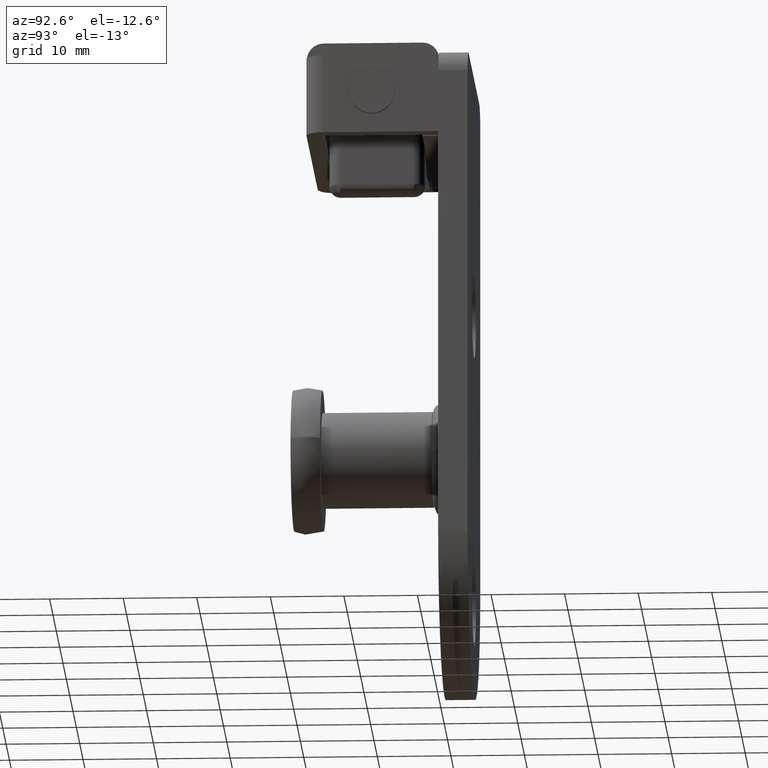
[diagram: clean part render]
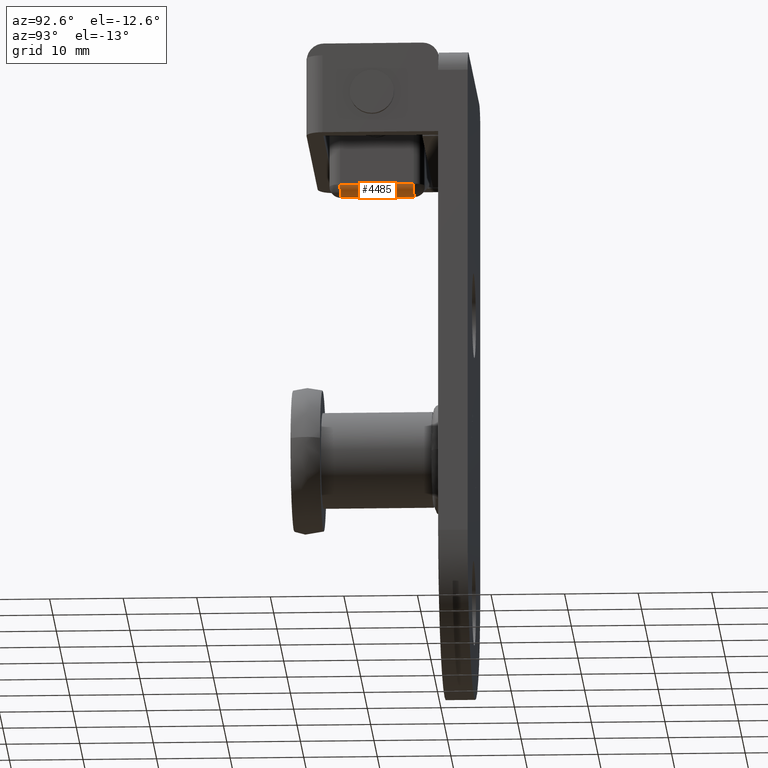
[diagram: same view with one face highlighted and labeled with its STEP entity id]
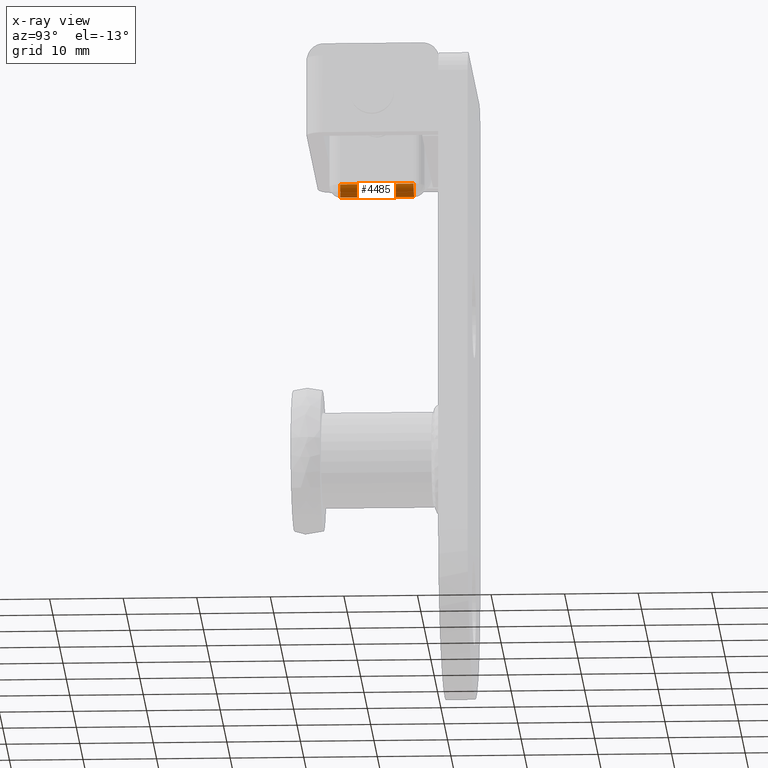
[diagram: x-ray of the same camera — body ghosted, the highlighted face saturated]
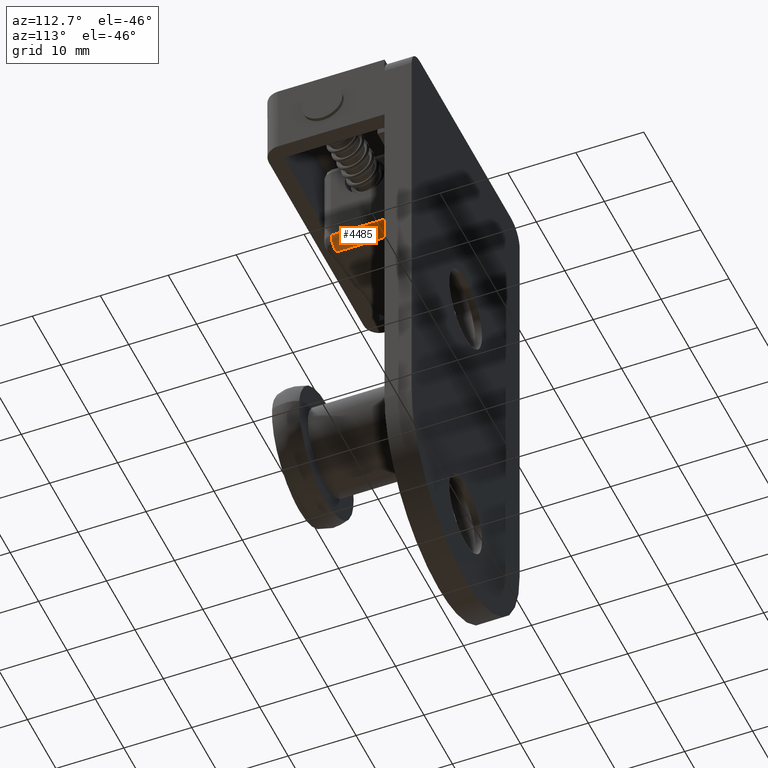
[diagram: same view with one face highlighted and labeled with its STEP entity id]
A machine part, auxiliary view. The second image highlights one B-rep face of the part: STEP entity #4485.
The next image is the same camera in x-ray: the body ghosted, the highlighted face saturated — about 0% of this face is hidden behind the body in this view.
A second angle (auxiliary view) of the same face is appended — the face is thin or edge-on in the first view.
In plain terms, the highlighted face is a freeform B-spline surface patch.
Its self-contained STEP definition (entity closure, byte-faithful):
#3674=CARTESIAN_POINT('',(-2.409798649836235,-16.500000000000000,36.051641824928147));
#3675=VERTEX_POINT('',#3674);
#3770=CARTESIAN_POINT('',(-4.299999999999900,-16.500000000000000,37.500000518874650));
#3771=VERTEX_POINT('',#3770);
#3772=CARTESIAN_POINT('',(-4.299999999999900,-16.500000000000000,37.500000518874650));
#3773=CARTESIAN_POINT('',(-4.300261543706422,-16.500000000000000,37.285030116468391));
#3774=CARTESIAN_POINT('',(-4.227960640992539,-16.500000000000000,36.955753064836713));
#3775=CARTESIAN_POINT('',(-3.996243832062951,-16.499999999999989,36.573332607372301));
#3776=CARTESIAN_POINT('',(-3.754398793512686,-16.500000000000110,36.325736378822803));
#3777=CARTESIAN_POINT('',(-3.462585185310895,-16.499999999999751,36.139574955418517));
#3778=CARTESIAN_POINT('',(-3.136112453459834,-16.500000000000199,36.024594063179983));
#3779=CARTESIAN_POINT('',(-2.777700939519795,-16.500000000000060,35.985263489714619));
#3780=CARTESIAN_POINT('',(-2.534301609014097,-16.499999999999929,36.018057030332088));
#3781=CARTESIAN_POINT('',(-2.409798649836235,-16.500000000000000,36.051641824928147));
#3782=B_SPLINE_CURVE_WITH_KNOTS('',3,(#3772,#3773,#3774,#3775,#3776,#3777,#3778,#3779,#3780,#3781),.UNSPECIFIED.,.F.,.U.,(4,1,1,1,1,1,1,4),(0.000000167465918,0.644773194969436,0.988654332886920,1.332544102194858,1.676391282591502,2.020286897292444,2.364170289803898,2.751030412050184),.UNSPECIFIED.);
#3783=EDGE_CURVE('',#3771,#3675,#3782,.T.);
#4059=CARTESIAN_POINT('',(-4.299999999999900,-6.499999999999840,37.500000518874650));
#4060=VERTEX_POINT('',#4059);
#4157=CARTESIAN_POINT('',(-2.409798649836235,-6.499999999999840,36.051641824928147));
#4158=VERTEX_POINT('',#4157);
#4159=CARTESIAN_POINT('',(-2.409798649836235,-6.499999999999840,36.051641824928147));
#4160=CARTESIAN_POINT('',(-2.589633837477416,-6.499999999999841,36.003028293923400));
#4161=CARTESIAN_POINT('',(-2.865764914988416,-6.499999999999847,35.982000924643494));
#4162=CARTESIAN_POINT('',(-3.246674624677963,-6.499999999999838,36.057437991355293));
#4163=CARTESIAN_POINT('',(-3.592726739031417,-6.499999999999854,36.201921775756723));
#4164=CARTESIAN_POINT('',(-3.886052706257063,-6.499999999999829,36.440373798816417));
#4165=CARTESIAN_POINT('',(-4.106404803045050,-6.499999999999834,36.742467289233787));
#4166=CARTESIAN_POINT('',(-4.256690738765801,-6.499999999999856,37.070207438460450));
#4167=CARTESIAN_POINT('',(-4.300083525911554,-6.499999999999819,37.342390871026019));
#4168=CARTESIAN_POINT('',(-4.299999999999900,-6.499999999999840,37.500000518874650));
#4169=B_SPLINE_CURVE_WITH_KNOTS('',3,(#4159,#4160,#4161,#4162,#4163,#4164,#4165,#4166,#4167,#4168),.UNSPECIFIED.,.F.,.U.,(4,1,1,1,1,1,1,4),(0.000000167466673,0.558796812418966,0.816721670916760,1.160622582489725,1.676391282592326,1.934309596225681,2.278210327446601,2.751030412050175),.UNSPECIFIED.);
#4170=EDGE_CURVE('',#4158,#4060,#4169,.T.);
#4457=CARTESIAN_POINT('',(-4.299485987463235,-16.750000000000000,37.539265941336460));
#4458=CARTESIAN_POINT('',(-4.299485987463235,-6.243749999999835,37.539265941336460));
#4459=CARTESIAN_POINT('',(-4.355562822285959,-16.750000000000004,35.397778017202960));
#4460=CARTESIAN_POINT('',(-4.355562822285959,-6.243749999999836,35.397778017202960));
#4461=CARTESIAN_POINT('',(-2.324043015392270,-16.750000000000000,36.077515036065350));
#4462=CARTESIAN_POINT('',(-2.324043015392270,-6.243749999999835,36.077515036065350));
#4470=(BOUNDED_SURFACE()B_SPLINE_SURFACE(1,2,((#4457,#4459,#4461),(#4458,#4460,#4462)),.UNSPECIFIED.,.F.,.F.,.U.)B_SPLINE_SURFACE_WITH_KNOTS((2,2),(3,3),(0.0,10.506250000000170),(0.0,3.123402303310464),.UNSPECIFIED.)GEOMETRIC_REPRESENTATION_ITEM()RATIONAL_B_SPLINE_SURFACE(((1.0,0.573576436351046,1.0),(1.0,0.573576436351046,1.0)))REPRESENTATION_ITEM('')SURFACE());
#4471=CARTESIAN_POINT('',(-2.409798649836235,-6.499999999999840,36.051641824928147));
#4472=CARTESIAN_POINT('',(-2.409798649836235,-16.500000000000000,36.051641824928147));
#4473=QUASI_UNIFORM_CURVE('',1,(#4471,#4472),.UNSPECIFIED.,.F.,.U.);
#4474=EDGE_CURVE('',#4158,#3675,#4473,.T.);
#4475=ORIENTED_EDGE('',*,*,#4474,.T.);
#4476=ORIENTED_EDGE('',*,*,#3783,.F.);
#4477=CARTESIAN_POINT('',(-4.299999999999900,-16.500000000000000,37.500000518874650));
#4478=CARTESIAN_POINT('',(-4.299999999999900,-6.499999999999840,37.500000518874650));
#4479=QUASI_UNIFORM_CURVE('',1,(#4477,#4478),.UNSPECIFIED.,.F.,.U.);
#4480=EDGE_CURVE('',#3771,#4060,#4479,.T.);
#4481=ORIENTED_EDGE('',*,*,#4480,.T.);
#4482=ORIENTED_EDGE('',*,*,#4170,.F.);
#4483=EDGE_LOOP('',(#4475,#4476,#4481,#4482));
#4484=FACE_OUTER_BOUND('',#4483,.T.);
#4485=ADVANCED_FACE('',(#4484),#4470,.T.);